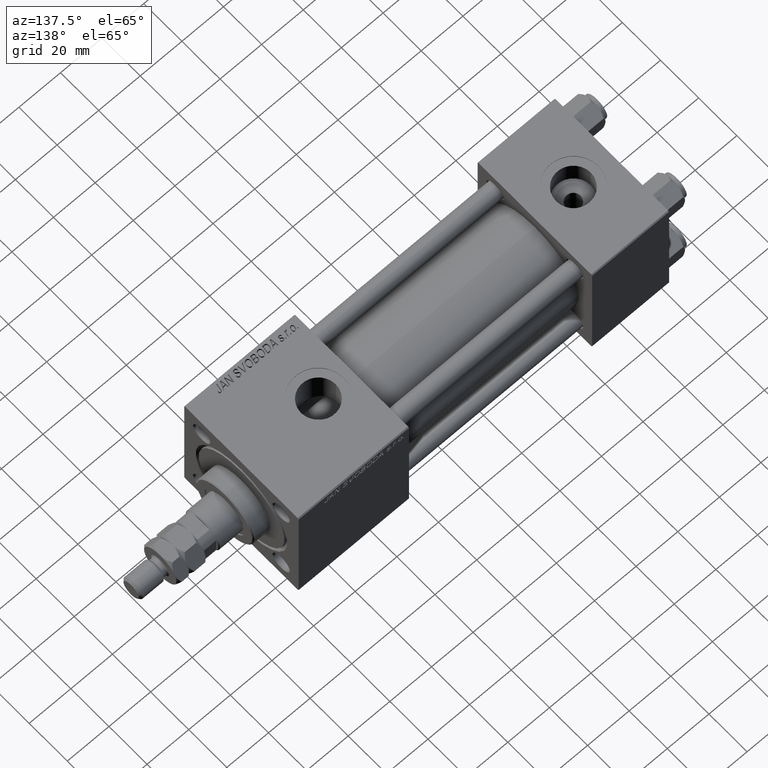
[diagram: clean part render]
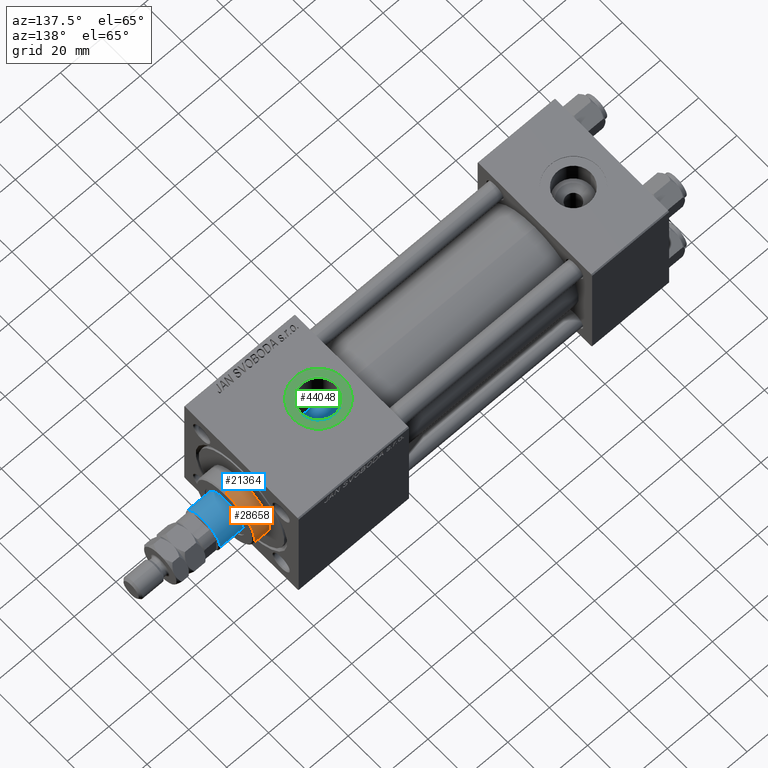
[diagram: same view with three faces highlighted in distinct colors, each labeled with its STEP entity id]
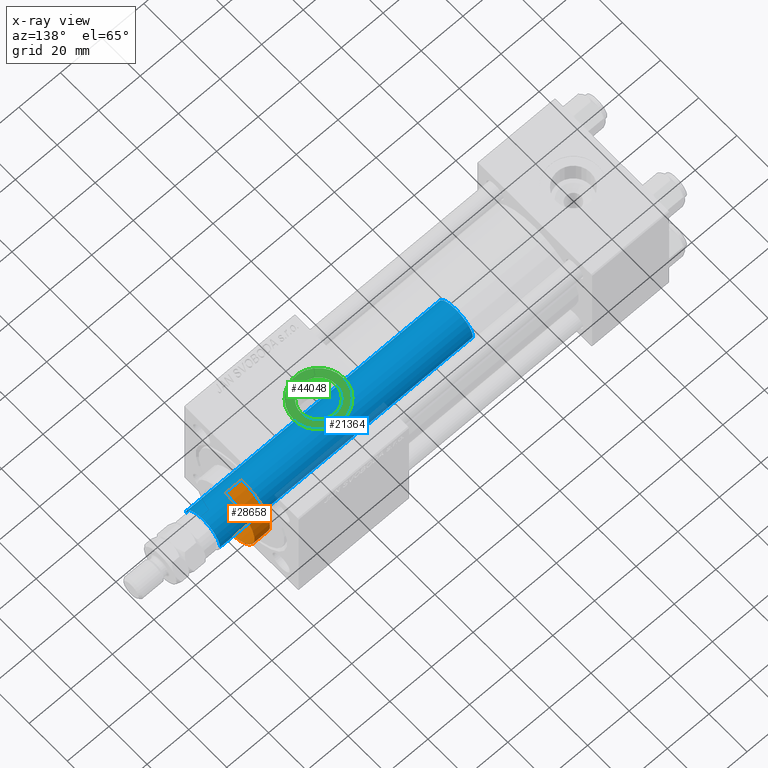
[diagram: x-ray of the same camera — body ghosted, the three highlighted faces saturated]
A machine part, auxiliary view with three faces highlighted in distinct colors.
The next image is the same camera in x-ray (body ghosted, the three faces saturated) — at least one of them is partly hidden behind the body in this view.
Their STEP definitions:

[orange] entity #28658 — the highlighted cylindrical surface (partial cylindrical patch) has radius 15 mm, axis along (-1, -0, -0).
#952 = CIRCLE ( 'NONE', #30341, 15.00000000000000000 ) ;
#2110 = CARTESIAN_POINT ( 'NONE',  ( -15.00000000000000000, 0.000000000000000000, 36.69999999999999574 ) ) ;
#2372 = LINE ( 'NONE', #2110, #30259 ) ;
#2984 = DIRECTION ( 'NONE',  ( 1.000000000000000000, 0.000000000000000000, 0.000000000000000000 ) ) ;
#5364 = CARTESIAN_POINT ( 'NONE',  ( 15.00000000000000000, 1.836970198721029589E-15, 36.20000000000000284 ) ) ;
#8491 = ORIENTED_EDGE ( 'NONE', *, *, #29891, .T. ) ;
#9080 = CARTESIAN_POINT ( 'NONE',  ( -15.00000000000000000, 0.000000000000000000, 28.69999999999999929 ) ) ;
#13820 = VECTOR ( 'NONE', #32717, 1000.000000000000000 ) ;
#19775 = EDGE_CURVE ( 'NONE', #38454, #45272, #40291, .T. ) ;
#20554 = CARTESIAN_POINT ( 'NONE',  ( 0.000000000000000000, 0.000000000000000000, 28.69999999999999929 ) ) ;
#20731 = EDGE_CURVE ( 'NONE', #29726, #24746, #2372, .T. ) ;
#21359 = EDGE_CURVE ( 'NONE', #45272, #24746, #952, .T. ) ;
#21567 = CYLINDRICAL_SURFACE ( 'NONE', #21823, 15.00000000000000000 ) ;
#21823 = AXIS2_PLACEMENT_3D ( 'NONE', #33740, #29151, #37796 ) ;
#24746 = VERTEX_POINT ( 'NONE', #9080 ) ;
#25154 = CARTESIAN_POINT ( 'NONE',  ( 15.00000000000000000, 1.836970198721029589E-15, 28.69999999999999929 ) ) ;
#25617 = FACE_OUTER_BOUND ( 'NONE', #48409, .T. ) ;
#26696 = CARTESIAN_POINT ( 'NONE',  ( -15.00000000000000000, 0.000000000000000000, 36.20000000000000284 ) ) ;
#28658 = ADVANCED_FACE ( 'NONE', ( #25617 ), #21567, .T. ) ;
#29151 = DIRECTION ( 'NONE',  ( -0.000000000000000000, -0.000000000000000000, -1.000000000000000000 ) ) ;
#29651 = CIRCLE ( 'NONE', #37416, 15.00000000000000000 ) ;
#29726 = VERTEX_POINT ( 'NONE', #26696 ) ;
#29891 = EDGE_CURVE ( 'NONE', #29726, #38454, #29651, .T. ) ;
#30259 = VECTOR ( 'NONE', #47810, 1000.000000000000000 ) ;
#30341 = AXIS2_PLACEMENT_3D ( 'NONE', #20554, #45419, #2984 ) ;
#31648 = CARTESIAN_POINT ( 'NONE',  ( 15.00000000000000000, 1.836970198721029589E-15, 36.69999999999999574 ) ) ;
#32717 = DIRECTION ( 'NONE',  ( -0.000000000000000000, -0.000000000000000000, -1.000000000000000000 ) ) ;
#32905 = DIRECTION ( 'NONE',  ( 0.000000000000000000, 0.000000000000000000, -1.000000000000000000 ) ) ;
#33740 = CARTESIAN_POINT ( 'NONE',  ( 0.000000000000000000, 0.000000000000000000, 36.69999999999999574 ) ) ;
#34154 = ORIENTED_EDGE ( 'NONE', *, *, #21359, .T. ) ;
#35374 = ORIENTED_EDGE ( 'NONE', *, *, #20731, .F. ) ;
#37416 = AXIS2_PLACEMENT_3D ( 'NONE', #53426, #32905, #49365 ) ;
#37796 = DIRECTION ( 'NONE',  ( -1.000000000000000000, 0.000000000000000000, 0.000000000000000000 ) ) ;
#38454 = VERTEX_POINT ( 'NONE', #5364 ) ;
#39185 = ORIENTED_EDGE ( 'NONE', *, *, #19775, .T. ) ;
#40291 = LINE ( 'NONE', #31648, #13820 ) ;
#45272 = VERTEX_POINT ( 'NONE', #25154 ) ;
#45419 = DIRECTION ( 'NONE',  ( 0.000000000000000000, 0.000000000000000000, 1.000000000000000000 ) ) ;
#47810 = DIRECTION ( 'NONE',  ( -0.000000000000000000, -0.000000000000000000, -1.000000000000000000 ) ) ;
#48409 = EDGE_LOOP ( 'NONE', ( #8491, #39185, #34154, #35374 ) ) ;
#49365 = DIRECTION ( 'NONE',  ( 1.000000000000000000, 0.000000000000000000, 0.000000000000000000 ) ) ;
#53426 = CARTESIAN_POINT ( 'NONE',  ( 0.000000000000000000, 0.000000000000000000, 36.20000000000000284 ) ) ;

[blue] entity #21364 — the highlighted cylindrical surface (edge-blend (fillet) strip) has radius 9 mm, axis along (-1, 0, 0).
#5287 = LINE ( 'NONE', #42331, #22975 ) ;
#5367 = DIRECTION ( 'NONE',  ( -1.000000000000000000, 0.000000000000000000, 0.000000000000000000 ) ) ;
#8896 = DIRECTION ( 'NONE',  ( -0.000000000000000000, -0.000000000000000000, -1.000000000000000000 ) ) ;
#9552 = DIRECTION ( 'NONE',  ( 1.000000000000000000, 0.000000000000000000, 0.000000000000000000 ) ) ;
#11150 = ORIENTED_EDGE ( 'NONE', *, *, #53514, .F. ) ;
#11615 = CARTESIAN_POINT ( 'NONE',  ( 9.000000000000000000, 1.102182119232617517E-15, 38.00000000000000000 ) ) ;
#13235 = CARTESIAN_POINT ( 'NONE',  ( 0.000000000000000000, 0.000000000000000000, 160.0000000000000000 ) ) ;
#15151 = VERTEX_POINT ( 'NONE', #22215 ) ;
#19321 = CARTESIAN_POINT ( 'NONE',  ( -9.000000000000000000, 0.000000000000000000, 159.5000000000000853 ) ) ;
#19505 = CYLINDRICAL_SURFACE ( 'NONE', #28618, 9.000000000000000000 ) ;
#19761 = FACE_OUTER_BOUND ( 'NONE', #50110, .T. ) ;
#21261 = CARTESIAN_POINT ( 'NONE',  ( 0.000000000000000000, 0.000000000000000000, 38.00000000000000000 ) ) ;
#21364 = ADVANCED_FACE ( 'NONE', ( #19761 ), #19505, .T. ) ;
#21578 = CIRCLE ( 'NONE', #52681, 9.000000000000000000 ) ;
#22215 = CARTESIAN_POINT ( 'NONE',  ( 9.000000000000000000, 1.102182119232617517E-15, 159.5000000000000853 ) ) ;
#22975 = VECTOR ( 'NONE', #42593, 1000.000000000000000 ) ;
#27243 = ORIENTED_EDGE ( 'NONE', *, *, #36686, .T. ) ;
#27515 = CARTESIAN_POINT ( 'NONE',  ( -9.000000000000000000, 0.000000000000000000, 38.00000000000000000 ) ) ;
#28618 = AXIS2_PLACEMENT_3D ( 'NONE', #13235, #8896, #5367 ) ;
#29037 = CIRCLE ( 'NONE', #37678, 9.000000000000000000 ) ;
#29639 = DIRECTION ( 'NONE',  ( 0.000000000000000000, 0.000000000000000000, 1.000000000000000000 ) ) ;
#30109 = CARTESIAN_POINT ( 'NONE',  ( 0.000000000000000000, 0.000000000000000000, 159.5000000000000853 ) ) ;
#30883 = ORIENTED_EDGE ( 'NONE', *, *, #36670, .T. ) ;
#32684 = VERTEX_POINT ( 'NONE', #11615 ) ;
#33060 = VERTEX_POINT ( 'NONE', #27515 ) ;
#33186 = DIRECTION ( 'NONE',  ( 1.000000000000000000, 0.000000000000000000, 0.000000000000000000 ) ) ;
#36670 = EDGE_CURVE ( 'NONE', #50994, #33060, #5287, .T. ) ;
#36686 = EDGE_CURVE ( 'NONE', #33060, #32684, #29037, .T. ) ;
#37678 = AXIS2_PLACEMENT_3D ( 'NONE', #21261, #29639, #33186 ) ;
#39282 = DIRECTION ( 'NONE',  ( -0.000000000000000000, -0.000000000000000000, -1.000000000000000000 ) ) ;
#42244 = ORIENTED_EDGE ( 'NONE', *, *, #42370, .T. ) ;
#42331 = CARTESIAN_POINT ( 'NONE',  ( -9.000000000000000000, 0.000000000000000000, 160.0000000000000000 ) ) ;
#42370 = EDGE_CURVE ( 'NONE', #15151, #50994, #21578, .T. ) ;
#42593 = DIRECTION ( 'NONE',  ( -0.000000000000000000, -0.000000000000000000, -1.000000000000000000 ) ) ;
#43597 = CARTESIAN_POINT ( 'NONE',  ( 9.000000000000000000, 1.102182119232617517E-15, 160.0000000000000000 ) ) ;
#46595 = DIRECTION ( 'NONE',  ( 0.000000000000000000, 0.000000000000000000, -1.000000000000000000 ) ) ;
#47103 = LINE ( 'NONE', #43597, #51321 ) ;
#50110 = EDGE_LOOP ( 'NONE', ( #11150, #42244, #30883, #27243 ) ) ;
#50994 = VERTEX_POINT ( 'NONE', #19321 ) ;
#51321 = VECTOR ( 'NONE', #39282, 1000.000000000000000 ) ;
#52681 = AXIS2_PLACEMENT_3D ( 'NONE', #30109, #46595, #9552 ) ;
#53514 = EDGE_CURVE ( 'NONE', #15151, #32684, #47103, .T. ) ;

[green] entity #44048 — the highlighted planar face has unit normal (0, 0, 1).
#239 = DIRECTION ( 'NONE',  ( 1.000000000000000000, 0.000000000000000000, 0.000000000000000000 ) ) ;
#3184 = CARTESIAN_POINT ( 'NONE',  ( 141.0000000000000000, -3.469446951953613794E-15, 29.79999999999999716 ) ) ;
#4338 = CARTESIAN_POINT ( 'NONE',  ( 129.0000000000000000, -1.999870792976789650E-15, 29.79999999999999716 ) ) ;
#7094 = DIRECTION ( 'NONE',  ( 0.000000000000000000, 0.000000000000000000, 1.000000000000000000 ) ) ;
#8622 = DIRECTION ( 'NONE',  ( -0.000000000000000000, -0.000000000000000000, -1.000000000000000000 ) ) ;
#10235 = FACE_OUTER_BOUND ( 'NONE', #19081, .T. ) ;
#10844 = DIRECTION ( 'NONE',  ( 0.000000000000000000, 0.000000000000000000, 1.000000000000000000 ) ) ;
#11041 = DIRECTION ( 'NONE',  ( 1.000000000000000000, 0.000000000000000000, -0.000000000000000000 ) ) ;
#11098 = DIRECTION ( 'NONE',  ( 1.000000000000000000, 0.000000000000000000, 0.000000000000000000 ) ) ;
#12370 = CIRCLE ( 'NONE', #42569, 12.00000000000001066 ) ;
#12565 = EDGE_LOOP ( 'NONE', ( #27960, #46790 ) ) ;
#12931 = DIRECTION ( 'NONE',  ( -0.000000000000000000, -0.000000000000000000, -1.000000000000000000 ) ) ;
#13794 = CARTESIAN_POINT ( 'NONE',  ( 149.3300000000000125, -2.449316168263869821E-15, 29.79999999999999716 ) ) ;
#17022 = ORIENTED_EDGE ( 'NONE', *, *, #26284, .T. ) ;
#17889 = VERTEX_POINT ( 'NONE', #38603 ) ;
#19081 = EDGE_LOOP ( 'NONE', ( #33840, #17022 ) ) ;
#19098 = CIRCLE ( 'NONE', #25971, 8.330000000000003624 ) ;
#19702 = VERTEX_POINT ( 'NONE', #13794 ) ;
#20543 = CARTESIAN_POINT ( 'NONE',  ( 132.6700000000000159, -3.469446951953613794E-15, 29.79999999999999716 ) ) ;
#22690 = FACE_BOUND ( 'NONE', #12565, .T. ) ;
#22752 = CARTESIAN_POINT ( 'NONE',  ( 141.0000000000000000, -3.469446951953613794E-15, 29.79999999999999716 ) ) ;
#23866 = DIRECTION ( 'NONE',  ( 1.000000000000000000, 0.000000000000000000, 0.000000000000000000 ) ) ;
#25584 = AXIS2_PLACEMENT_3D ( 'NONE', #31460, #7094, #23866 ) ;
#25971 = AXIS2_PLACEMENT_3D ( 'NONE', #45648, #12931, #45915 ) ;
#26284 = EDGE_CURVE ( 'NONE', #39856, #17889, #12370, .T. ) ;
#27960 = ORIENTED_EDGE ( 'NONE', *, *, #48078, .T. ) ;
#29418 = AXIS2_PLACEMENT_3D ( 'NONE', #3184, #47823, #11041 ) ;
#31460 = CARTESIAN_POINT ( 'NONE',  ( 141.0000000000000000, -3.469446951953613794E-15, 29.79999999999999716 ) ) ;
#33840 = ORIENTED_EDGE ( 'NONE', *, *, #37180, .T. ) ;
#35083 = CIRCLE ( 'NONE', #25584, 12.00000000000001066 ) ;
#35923 = PLANE ( 'NONE',  #29418 ) ;
#36482 = AXIS2_PLACEMENT_3D ( 'NONE', #45149, #8622, #239 ) ;
#37180 = EDGE_CURVE ( 'NONE', #17889, #39856, #35083, .T. ) ;
#37328 = CIRCLE ( 'NONE', #36482, 8.330000000000003624 ) ;
#38603 = CARTESIAN_POINT ( 'NONE',  ( 153.0000000000000284, -3.469446951953613794E-15, 29.79999999999999716 ) ) ;
#39856 = VERTEX_POINT ( 'NONE', #4338 ) ;
#40210 = EDGE_CURVE ( 'NONE', #19702, #48067, #19098, .T. ) ;
#42569 = AXIS2_PLACEMENT_3D ( 'NONE', #22752, #10844, #11098 ) ;
#44048 = ADVANCED_FACE ( 'NONE', ( #22690, #10235 ), #35923, .T. ) ;
#45149 = CARTESIAN_POINT ( 'NONE',  ( 141.0000000000000000, -3.469446951953613794E-15, 29.79999999999999716 ) ) ;
#45648 = CARTESIAN_POINT ( 'NONE',  ( 141.0000000000000000, -3.469446951953613794E-15, 29.79999999999999716 ) ) ;
#45915 = DIRECTION ( 'NONE',  ( 1.000000000000000000, 0.000000000000000000, 0.000000000000000000 ) ) ;
#46790 = ORIENTED_EDGE ( 'NONE', *, *, #40210, .T. ) ;
#47823 = DIRECTION ( 'NONE',  ( 0.000000000000000000, 0.000000000000000000, 1.000000000000000000 ) ) ;
#48067 = VERTEX_POINT ( 'NONE', #20543 ) ;
#48078 = EDGE_CURVE ( 'NONE', #48067, #19702, #37328, .T. ) ;